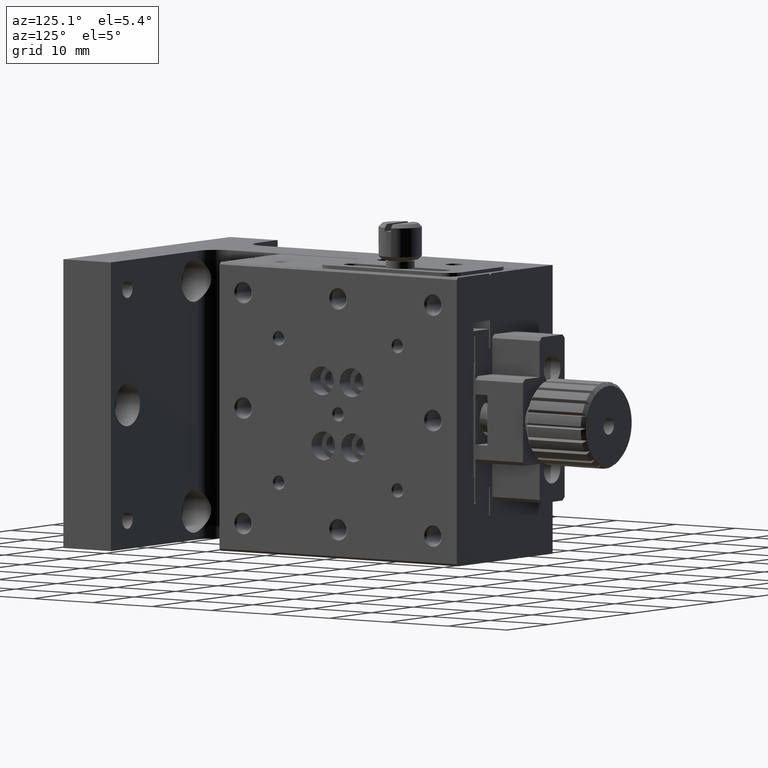
[diagram: clean part render]
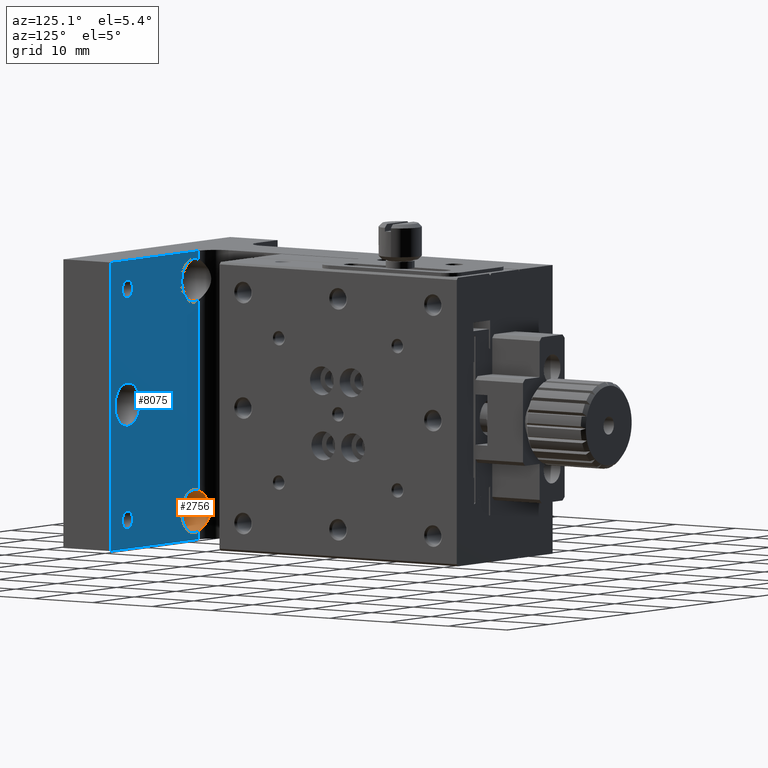
[diagram: same view with the hole feature highlighted: cylindrical wall and planar end face, labeled with their STEP entity ids]
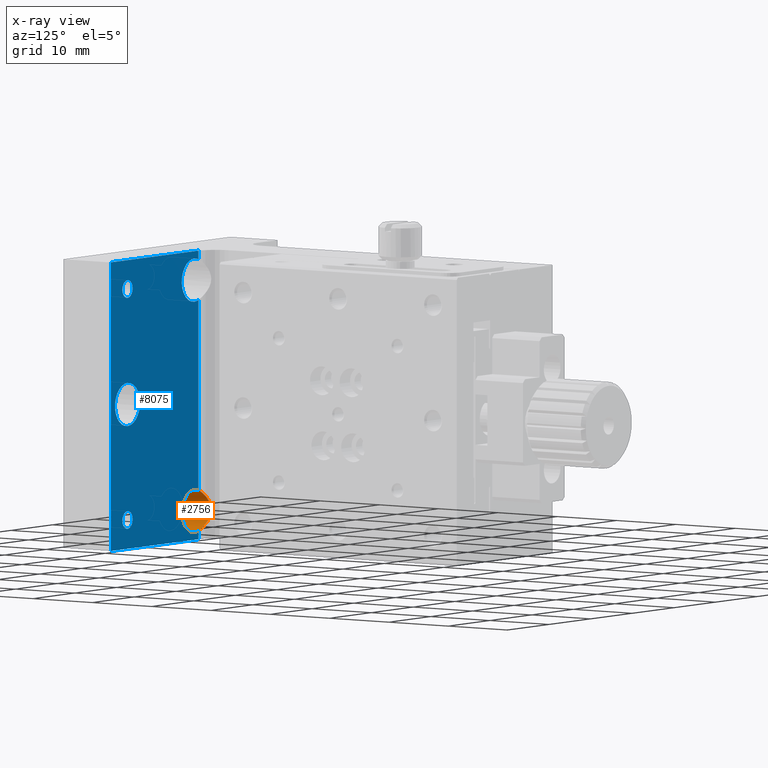
[diagram: x-ray of the same camera — body ghosted, the hole faces saturated]
A machine part, auxiliary view. The highlighted faces form one hole feature of diameter 6 mm: the cylindrical wall (entity #2756, orange) and its adjacent planar end face (entity #8075, blue) — they share a circular edge in the B-rep.
The next image is the same camera in x-ray (body ghosted, the hole faces saturated) — the bore reads through the body.
Wall:
#208 = CARTESIAN_POINT ( 'NONE',  ( 17.01281069748860375, 8.752306015370146852, -36.31778186706653599 ) ) ;
#312 = CARTESIAN_POINT ( 'NONE',  ( 17.24912044884800011, 8.562571854232894353, -34.79359931062496969 ) ) ;
#695 = FACE_OUTER_BOUND ( 'NONE', #4426, .T. ) ;
#1005 = CARTESIAN_POINT ( 'NONE',  ( 18.70366764204017329, 8.011440006757498011, -33.29001516765340085 ) ) ;
#1055 = CARTESIAN_POINT ( 'NONE',  ( 17.24071141241682881, 8.566984482498359199, -37.21738005019282269 ) ) ;
#1551 = CARTESIAN_POINT ( 'NONE',  ( 20.00000000000000000, 8.000000000000000000, -36.00000000000000711 ) ) ;
#1887 = CARTESIAN_POINT ( 'NONE',  ( 17.06181432683357357, 8.709915750700565340, -36.62557988624503480 ) ) ;
#1991 = DIRECTION ( 'NONE',  ( 0.000000000000000000, 0.000000000000000000, -1.000000000000000000 ) ) ;
#2103 = CARTESIAN_POINT ( 'NONE',  ( 19.00000000000000355, 8.000000000000000000, -33.17157287525380838 ) ) ;
#2153 = CIRCLE ( 'NONE', #9561, 3.000000000000002665 ) ;
#2315 = DIRECTION ( 'NONE',  ( 0.000000000000000000, 0.000000000000000000, -1.000000000000000000 ) ) ;
#2346 = DIRECTION ( 'NONE',  ( 0.000000000000000000, 0.000000000000000000, -1.000000000000000000 ) ) ;
#2366 = DIRECTION ( 'NONE',  ( 0.000000000000000000, -1.000000000000000000, 0.000000000000000000 ) ) ;
#2628 = CARTESIAN_POINT ( 'NONE',  ( 18.05486831225843147, 8.149935395141321592, -33.71086729424113315 ) ) ;
#2687 = CARTESIAN_POINT ( 'NONE',  ( 18.42871268474310753, 8.051621716432871168, -33.43961886689596952 ) ) ;
#2731 = CARTESIAN_POINT ( 'NONE',  ( 17.46210129923305487, 8.422278688137950553, -34.39326082207188762 ) ) ;
#2756 = ADVANCED_FACE ( 'NONE', ( #695, #10344 ), #6321, .F. ) ;
#2777 = VERTEX_POINT ( 'NONE', #6696 ) ;
#3310 = CARTESIAN_POINT ( 'NONE',  ( 18.84970728491996894, 7.999999999999996447, -33.22470937425183024 ) ) ;
#3420 = CARTESIAN_POINT ( 'NONE',  ( 17.00001360991518595, 8.763919849422126873, -36.15827975008129869 ) ) ;
#3520 = AXIS2_PLACEMENT_3D ( 'NONE', #5790, #9168, #1991 ) ;
#3681 = CIRCLE ( 'NONE', #3520, 3.000000000000002665 ) ;
#4087 = CARTESIAN_POINT ( 'NONE',  ( 17.72365042242730482, 8.277781858656842573, -37.97718554062594620 ) ) ;
#4253 = CARTESIAN_POINT ( 'NONE',  ( 17.38396565619781597, 8.471152798591475630, -34.52382072893628617 ) ) ;
#4302 = CARTESIAN_POINT ( 'NONE',  ( 17.93308513327729159, 8.184463707108884378, -38.19633094104226245 ) ) ;
#4426 = EDGE_LOOP ( 'NONE', ( #7974, #7311 ) ) ;
#4939 = CARTESIAN_POINT ( 'NONE',  ( 17.19185207732865450, 8.605386939612605701, -34.93336953761904340 ) ) ;
#4998 = CARTESIAN_POINT ( 'NONE',  ( 17.01237562666092629, 8.752693045605873579, -35.68615207019598046 ) ) ;
#5056 = CARTESIAN_POINT ( 'NONE',  ( 19.00000000000000000, 8.000000000000000000, -38.82842712474619162 ) ) ;
#5111 = EDGE_CURVE ( 'NONE', #2777, #7478, #6629, .T. ) ;
#5734 = CARTESIAN_POINT ( 'NONE',  ( 17.06112599086390347, 8.710500759236587953, -35.37756970057985484 ) ) ;
#5790 = CARTESIAN_POINT ( 'NONE',  ( 20.00000000000000000, 4.000000000000000000, -36.00000000000000711 ) ) ;
#5841 = CARTESIAN_POINT ( 'NONE',  ( 16.99998641230205720, 8.763944175706591011, -35.84223658976920746 ) ) ;
#5899 = CARTESIAN_POINT ( 'NONE',  ( 17.63519898629308003, 8.326594350190562821, -34.14790476302798794 ) ) ;
#6321 = CYLINDRICAL_SURFACE ( 'NONE', #6969, 3.000000000000002665 ) ;
#6629 = B_SPLINE_CURVE_WITH_KNOTS ( 'NONE', 3,
 ( #5056, #9963, #9114, #4302, #4087, #7534, #1055, #7483, #1887, #208, #3420, #5841, #4998, #5734, #8221, #4939, #312, #4253, #2731, #5899, #8274, #9858, #2628, #6687, #2687, #1005, #3310, #7319 ),
 .UNSPECIFIED., .F., .F.,
 ( 4, 2, 2, 2, 2, 2, 2, 2, 2, 2, 2, 2, 2, 4 ),
 ( 3.469446951953614189E-18, 0.0009401447641671105198, 0.001880289528334217570, 0.002820434292501324512, 0.003290506674584886548, 0.003760579056668449018, 0.004230651438752011488, 0.004700723820835574392, 0.005170796202919137295, 0.005640868585002700199, 0.006110940967086262235, 0.006581013349169825138, 0.007051085731253388042, 0.007521158113336950078 ),
 .UNSPECIFIED. ) ;
#6687 = CARTESIAN_POINT ( 'NONE',  ( 18.29922425358108029, 8.080230229577596290, -33.52390878850868461 ) ) ;
#6696 = CARTESIAN_POINT ( 'NONE',  ( 19.00000000000000000, 8.000000000000000000, -38.82842712474619162 ) ) ;
#6713 = EDGE_CURVE ( 'NONE', #2777, #7478, #2153, .T. ) ;
#6957 = EDGE_LOOP ( 'NONE', ( #10290 ) ) ;
#6969 = AXIS2_PLACEMENT_3D ( 'NONE', #9544, #2366, #2315 ) ;
#7311 = ORIENTED_EDGE ( 'NONE', *, *, #5111, .T. ) ;
#7319 = CARTESIAN_POINT ( 'NONE',  ( 19.00000000000000355, 8.000000000000000000, -33.17157287525380838 ) ) ;
#7478 = VERTEX_POINT ( 'NONE', #2103 ) ;
#7483 = CARTESIAN_POINT ( 'NONE',  ( 17.09794559834611505, 8.679255665987703594, -36.77588799055331492 ) ) ;
#7534 = CARTESIAN_POINT ( 'NONE',  ( 17.37552597993563097, 8.470054543796710078, -37.48430663253346040 ) ) ;
#7664 = EDGE_CURVE ( 'NONE', #10160, #10160, #3681, .T. ) ;
#7837 = DIRECTION ( 'NONE',  ( 0.000000000000000000, -1.000000000000000000, 0.000000000000000000 ) ) ;
#7974 = ORIENTED_EDGE ( 'NONE', *, *, #6713, .F. ) ;
#8221 = CARTESIAN_POINT ( 'NONE',  ( 17.09793119445218679, 8.679287851068018256, -35.22450535350095890 ) ) ;
#8274 = CARTESIAN_POINT ( 'NONE',  ( 17.73048646079679713, 8.279479781209726497, -34.03222015199200001 ) ) ;
#9114 = CARTESIAN_POINT ( 'NONE',  ( 18.42561627553536496, 8.044389185550455679, -38.57241570454696955 ) ) ;
#9168 = DIRECTION ( 'NONE',  ( -0.000000000000000000, 1.000000000000000000, -0.000000000000000000 ) ) ;
#9544 = CARTESIAN_POINT ( 'NONE',  ( 20.00000000000000000, 0.000000000000000000, -36.00000000000000711 ) ) ;
#9561 = AXIS2_PLACEMENT_3D ( 'NONE', #1551, #7837, #2346 ) ;
#9858 = CARTESIAN_POINT ( 'NONE',  ( 17.93977806397518293, 8.191294900948358659, -33.81405974254208502 ) ) ;
#9963 = CARTESIAN_POINT ( 'NONE',  ( 18.69913493667851867, 7.999999999999998224, -38.72205526149781463 ) ) ;
#10160 = VERTEX_POINT ( 'NONE', #10210 ) ;
#10210 = CARTESIAN_POINT ( 'NONE',  ( 20.00000000000000000, 4.000000000000000000, -39.00000000000000711 ) ) ;
#10290 = ORIENTED_EDGE ( 'NONE', *, *, #7664, .F. ) ;
#10344 = FACE_OUTER_BOUND ( 'NONE', #6957, .T. ) ;
End face:
#21 = ORIENTED_EDGE ( 'NONE', *, *, #8401, .T. ) ;
#69 = EDGE_CURVE ( 'NONE', #889, #9700, #80, .T. ) ;
#80 = LINE ( 'NONE', #1708, #5215 ) ;
#88 = LINE ( 'NONE', #5776, #5514 ) ;
#122 = AXIS2_PLACEMENT_3D ( 'NONE', #3094, #687, #3257 ) ;
#136 = DIRECTION ( 'NONE',  ( -0.000000000000000000, 0.000000000000000000, -1.000000000000000000 ) ) ;
#687 = DIRECTION ( 'NONE',  ( 0.000000000000000000, -1.000000000000000000, 0.000000000000000000 ) ) ;
#858 = VERTEX_POINT ( 'NONE', #9808 ) ;
#889 = VERTEX_POINT ( 'NONE', #5845 ) ;
#1110 = ORIENTED_EDGE ( 'NONE', *, *, #7010, .T. ) ;
#1157 = EDGE_CURVE ( 'NONE', #9339, #9339, #4920, .T. ) ;
#1551 = CARTESIAN_POINT ( 'NONE',  ( 20.00000000000000000, 8.000000000000000000, -36.00000000000000711 ) ) ;
#1621 = EDGE_CURVE ( 'NONE', #10087, #10087, #8978, .T. ) ;
#1708 = CARTESIAN_POINT ( 'NONE',  ( 40.00000000000000000, 8.000000000000000000, -40.00000000000000000 ) ) ;
#1786 = DIRECTION ( 'NONE',  ( 0.000000000000000000, 0.000000000000000000, -1.000000000000000000 ) ) ;
#1854 = AXIS2_PLACEMENT_3D ( 'NONE', #5325, #8550, #7713 ) ;
#1973 = CARTESIAN_POINT ( 'NONE',  ( 19.00000000000000000, 8.000000000000000000, -40.00000000000000000 ) ) ;
#2103 = CARTESIAN_POINT ( 'NONE',  ( 19.00000000000000355, 8.000000000000000000, -33.17157287525380838 ) ) ;
#2105 = CARTESIAN_POINT ( 'NONE',  ( 36.00000000000000711, 8.000000000000000000, -37.22950000000000870 ) ) ;
#2113 = EDGE_LOOP ( 'NONE', ( #9556, #1110, #8207, #4338, #21, #3263, #8643, #9687 ) ) ;
#2153 = CIRCLE ( 'NONE', #9561, 3.000000000000002665 ) ;
#2281 = ORIENTED_EDGE ( 'NONE', *, *, #1621, .T. ) ;
#2283 = VECTOR ( 'NONE', #7340, 1000.000000000000000 ) ;
#2298 = EDGE_LOOP ( 'NONE', ( #3705 ) ) ;
#2346 = DIRECTION ( 'NONE',  ( 0.000000000000000000, 0.000000000000000000, -1.000000000000000000 ) ) ;
#2349 = DIRECTION ( 'NONE',  ( 0.000000000000000000, -1.000000000000000000, 0.000000000000000000 ) ) ;
#2516 = DIRECTION ( 'NONE',  ( 0.000000000000000000, 1.000000000000000000, 0.000000000000000000 ) ) ;
#2576 = AXIS2_PLACEMENT_3D ( 'NONE', #6410, #2349, #9579 ) ;
#2618 = FACE_OUTER_BOUND ( 'NONE', #2113, .T. ) ;
#2642 = ORIENTED_EDGE ( 'NONE', *, *, #1157, .T. ) ;
#2676 = FACE_BOUND ( 'NONE', #9959, .T. ) ;
#2715 = VERTEX_POINT ( 'NONE', #6271 ) ;
#2770 = CARTESIAN_POINT ( 'NONE',  ( 36.00000000000000711, 8.000000000000000000, -5.229499999999999815 ) ) ;
#2777 = VERTEX_POINT ( 'NONE', #6696 ) ;
#3094 = CARTESIAN_POINT ( 'NONE',  ( 36.00000000000000711, 8.000000000000000000, -4.000000000000000000 ) ) ;
#3257 = DIRECTION ( 'NONE',  ( 0.000000000000000000, 0.000000000000000000, -1.000000000000000000 ) ) ;
#3263 = ORIENTED_EDGE ( 'NONE', *, *, #3274, .T. ) ;
#3265 = CARTESIAN_POINT ( 'NONE',  ( 36.00000000000000711, 8.000000000000000000, -36.00000000000000711 ) ) ;
#3274 = EDGE_CURVE ( 'NONE', #5847, #2715, #5052, .T. ) ;
#3296 = DIRECTION ( 'NONE',  ( 0.000000000000000000, 0.000000000000000000, 1.000000000000000000 ) ) ;
#3356 = PLANE ( 'NONE',  #7904 ) ;
#3398 = EDGE_LOOP ( 'NONE', ( #2642 ) ) ;
#3562 = CARTESIAN_POINT ( 'NONE',  ( 40.00000000000000000, 8.000000000000000000, -40.00000000000000000 ) ) ;
#3628 = CIRCLE ( 'NONE', #122, 1.229499999999999593 ) ;
#3705 = ORIENTED_EDGE ( 'NONE', *, *, #4997, .T. ) ;
#3945 = EDGE_CURVE ( 'NONE', #9700, #858, #5701, .T. ) ;
#4167 = EDGE_CURVE ( 'NONE', #889, #2715, #7906, .T. ) ;
#4295 = VECTOR ( 'NONE', #8218, 1000.000000000000000 ) ;
#4338 = ORIENTED_EDGE ( 'NONE', *, *, #9469, .T. ) ;
#4378 = CIRCLE ( 'NONE', #1854, 3.000000000000000000 ) ;
#4427 = AXIS2_PLACEMENT_3D ( 'NONE', #3265, #9014, #1786 ) ;
#4920 = CIRCLE ( 'NONE', #2576, 2.999999999999999112 ) ;
#4997 = EDGE_CURVE ( 'NONE', #7473, #7473, #3628, .T. ) ;
#5052 = LINE ( 'NONE', #5673, #4295 ) ;
#5215 = VECTOR ( 'NONE', #136, 1000.000000000000000 ) ;
#5325 = CARTESIAN_POINT ( 'NONE',  ( 20.00000000000000000, 8.000000000000000000, -4.000000000000000000 ) ) ;
#5514 = VECTOR ( 'NONE', #3296, 1000.000000000000000 ) ;
#5619 = CARTESIAN_POINT ( 'NONE',  ( 19.00000000000000000, 8.000000000000000000, 0.000000000000000000 ) ) ;
#5673 = CARTESIAN_POINT ( 'NONE',  ( 19.00000000000000000, 8.000000000000000000, -40.00000000000000000 ) ) ;
#5701 = LINE ( 'NONE', #7181, #2283 ) ;
#5776 = CARTESIAN_POINT ( 'NONE',  ( 19.00000000000000000, 8.000000000000000000, -40.00000000000000000 ) ) ;
#5845 = CARTESIAN_POINT ( 'NONE',  ( 40.00000000000000000, 8.000000000000000000, 0.000000000000000000 ) ) ;
#5847 = VERTEX_POINT ( 'NONE', #8966 ) ;
#6139 = DIRECTION ( 'NONE',  ( 0.000000000000000000, 0.000000000000000000, 1.000000000000000000 ) ) ;
#6171 = VECTOR ( 'NONE', #8840, 1000.000000000000000 ) ;
#6271 = CARTESIAN_POINT ( 'NONE',  ( 19.00000000000000000, 8.000000000000000000, 0.000000000000000000 ) ) ;
#6410 = CARTESIAN_POINT ( 'NONE',  ( 36.00000000000000711, 8.000000000000000000, -20.00000000000000000 ) ) ;
#6696 = CARTESIAN_POINT ( 'NONE',  ( 19.00000000000000000, 8.000000000000000000, -38.82842712474619162 ) ) ;
#6713 = EDGE_CURVE ( 'NONE', #2777, #7478, #2153, .T. ) ;
#6729 = FACE_BOUND ( 'NONE', #2298, .T. ) ;
#6857 = CARTESIAN_POINT ( 'NONE',  ( 36.00000000000000711, 8.000000000000000000, -23.00000000000000000 ) ) ;
#6978 = LINE ( 'NONE', #1973, #10422 ) ;
#7010 = EDGE_CURVE ( 'NONE', #858, #2777, #6978, .T. ) ;
#7181 = CARTESIAN_POINT ( 'NONE',  ( 19.00000000000000000, 8.000000000000000000, -40.00000000000000000 ) ) ;
#7340 = DIRECTION ( 'NONE',  ( -1.000000000000000000, -0.000000000000000000, 0.000000000000000000 ) ) ;
#7473 = VERTEX_POINT ( 'NONE', #2770 ) ;
#7478 = VERTEX_POINT ( 'NONE', #2103 ) ;
#7713 = DIRECTION ( 'NONE',  ( 0.000000000000000000, 0.000000000000000000, -1.000000000000000000 ) ) ;
#7837 = DIRECTION ( 'NONE',  ( 0.000000000000000000, -1.000000000000000000, 0.000000000000000000 ) ) ;
#7904 = AXIS2_PLACEMENT_3D ( 'NONE', #3562, #2516, #9954 ) ;
#7906 = LINE ( 'NONE', #5619, #6171 ) ;
#8075 = ADVANCED_FACE ( 'NONE', ( #2618, #2676, #6729, #8158 ), #3356, .T. ) ;
#8158 = FACE_BOUND ( 'NONE', #3398, .T. ) ;
#8207 = ORIENTED_EDGE ( 'NONE', *, *, #6713, .T. ) ;
#8218 = DIRECTION ( 'NONE',  ( 0.000000000000000000, 0.000000000000000000, 1.000000000000000000 ) ) ;
#8332 = CARTESIAN_POINT ( 'NONE',  ( 19.00000000000000000, 8.000000000000000000, -6.828427124746188071 ) ) ;
#8401 = EDGE_CURVE ( 'NONE', #8779, #5847, #4378, .T. ) ;
#8550 = DIRECTION ( 'NONE',  ( 0.000000000000000000, -1.000000000000000000, 0.000000000000000000 ) ) ;
#8643 = ORIENTED_EDGE ( 'NONE', *, *, #4167, .F. ) ;
#8779 = VERTEX_POINT ( 'NONE', #8332 ) ;
#8840 = DIRECTION ( 'NONE',  ( -1.000000000000000000, -0.000000000000000000, 0.000000000000000000 ) ) ;
#8966 = CARTESIAN_POINT ( 'NONE',  ( 19.00000000000000000, 8.000000000000000000, -1.171572875253810375 ) ) ;
#8978 = CIRCLE ( 'NONE', #4427, 1.229500000000001370 ) ;
#9014 = DIRECTION ( 'NONE',  ( 0.000000000000000000, -1.000000000000000000, 0.000000000000000000 ) ) ;
#9339 = VERTEX_POINT ( 'NONE', #6857 ) ;
#9459 = CARTESIAN_POINT ( 'NONE',  ( 40.00000000000000000, 8.000000000000000000, -40.00000000000000000 ) ) ;
#9469 = EDGE_CURVE ( 'NONE', #7478, #8779, #88, .T. ) ;
#9556 = ORIENTED_EDGE ( 'NONE', *, *, #3945, .T. ) ;
#9561 = AXIS2_PLACEMENT_3D ( 'NONE', #1551, #7837, #2346 ) ;
#9579 = DIRECTION ( 'NONE',  ( 0.000000000000000000, 0.000000000000000000, -1.000000000000000000 ) ) ;
#9687 = ORIENTED_EDGE ( 'NONE', *, *, #69, .T. ) ;
#9700 = VERTEX_POINT ( 'NONE', #9459 ) ;
#9808 = CARTESIAN_POINT ( 'NONE',  ( 19.00000000000000000, 8.000000000000000000, -40.00000000000000000 ) ) ;
#9954 = DIRECTION ( 'NONE',  ( 0.000000000000000000, -0.000000000000000000, 1.000000000000000000 ) ) ;
#9959 = EDGE_LOOP ( 'NONE', ( #2281 ) ) ;
#10087 = VERTEX_POINT ( 'NONE', #2105 ) ;
#10422 = VECTOR ( 'NONE', #6139, 1000.000000000000000 ) ;